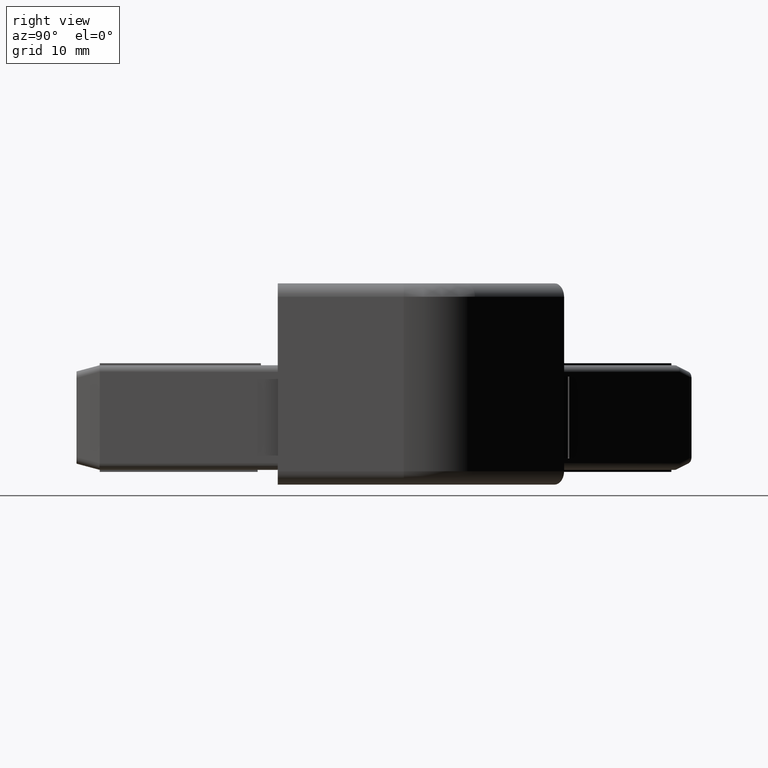
[diagram: clean part render]
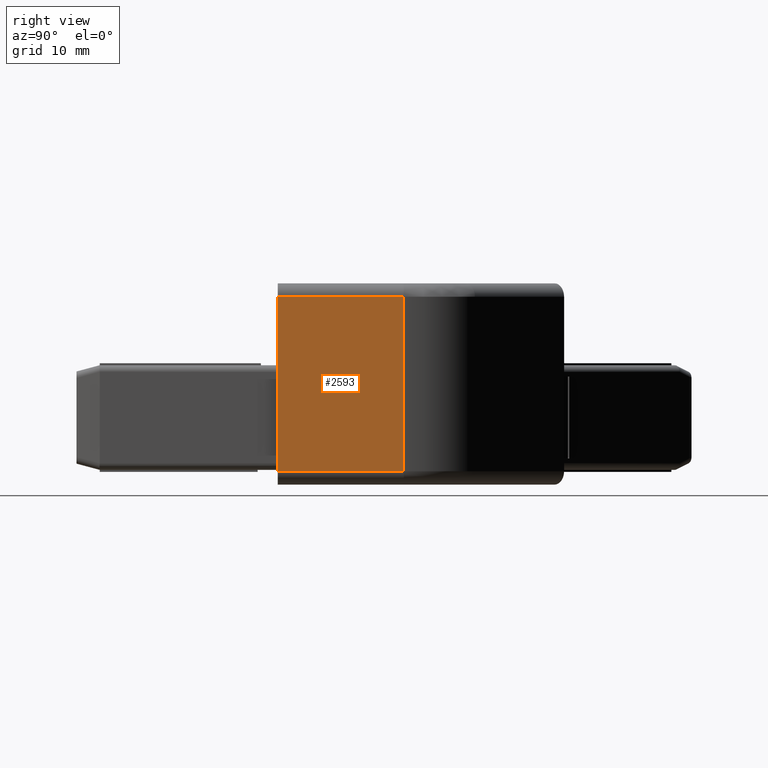
[diagram: same view with one face highlighted and labeled with its STEP entity id]
A machine part, right view. The second image highlights one B-rep face of the part: STEP entity #2593.
In plain terms, the highlighted planar face has unit normal (1, 0, 0).
Its self-contained STEP definition (entity closure, byte-faithful):
#1407=CARTESIAN_POINT('',(10.000000000000229,48.771067811866786,-8.000000000000155));
#1408=VERTEX_POINT('',#1407);
#1416=CARTESIAN_POINT('',(10.000000000000229,29.984271247463042,-8.000000000000155));
#1417=VERTEX_POINT('',#1416);
#1418=CARTESIAN_POINT('',(10.000000000000229,48.771067811866786,-8.000000000000155));
#1419=DIRECTION('',(0.0,-1.0,0.0));
#1420=VECTOR('',#1419,18.786796564403737);
#1421=LINE('',#1418,#1420);
#1422=EDGE_CURVE('',#1408,#1417,#1421,.T.);
#2465=CARTESIAN_POINT('',(10.000000000000226,29.984271247463042,17.999999999999687));
#2466=VERTEX_POINT('',#2465);
#2474=CARTESIAN_POINT('',(10.000000000000226,48.771067811866786,17.999999999999687));
#2475=VERTEX_POINT('',#2474);
#2476=CARTESIAN_POINT('',(10.000000000000226,29.984271247463042,17.999999999999687));
#2477=DIRECTION('',(0.0,1.0,0.0));
#2478=VECTOR('',#2477,18.786796564403737);
#2479=LINE('',#2476,#2478);
#2480=EDGE_CURVE('',#2466,#2475,#2479,.T.);
#2567=CARTESIAN_POINT('',(10.000000000000229,48.771067811866786,-8.000000000000155));
#2568=DIRECTION('',(0.0,0.0,1.0));
#2569=VECTOR('',#2568,25.999999999999844);
#2570=LINE('',#2567,#2569);
#2571=EDGE_CURVE('',#1408,#2475,#2570,.T.);
#2577=CARTESIAN_POINT('',(10.000000000000226,48.771167811864260,20.000099999997161));
#2578=DIRECTION('',(1.0,0.0,0.0));
#2579=DIRECTION('',(0.0,-1.0,0.0));
#2580=AXIS2_PLACEMENT_3D('',#2577,#2578,#2579);
#2581=PLANE('',#2580);
#2582=ORIENTED_EDGE('',*,*,#2571,.T.);
#2583=ORIENTED_EDGE('',*,*,#2480,.F.);
#2584=CARTESIAN_POINT('',(10.000000000000229,29.984271247463042,-8.000000000000155));
#2585=DIRECTION('',(0.0,0.0,1.0));
#2586=VECTOR('',#2585,25.999999999999844);
#2587=LINE('',#2584,#2586);
#2588=EDGE_CURVE('',#1417,#2466,#2587,.T.);
#2589=ORIENTED_EDGE('',*,*,#2588,.F.);
#2590=ORIENTED_EDGE('',*,*,#1422,.F.);
#2591=EDGE_LOOP('',(#2582,#2583,#2589,#2590));
#2592=FACE_OUTER_BOUND('',#2591,.T.);
#2593=ADVANCED_FACE('',(#2592),#2581,.T.);